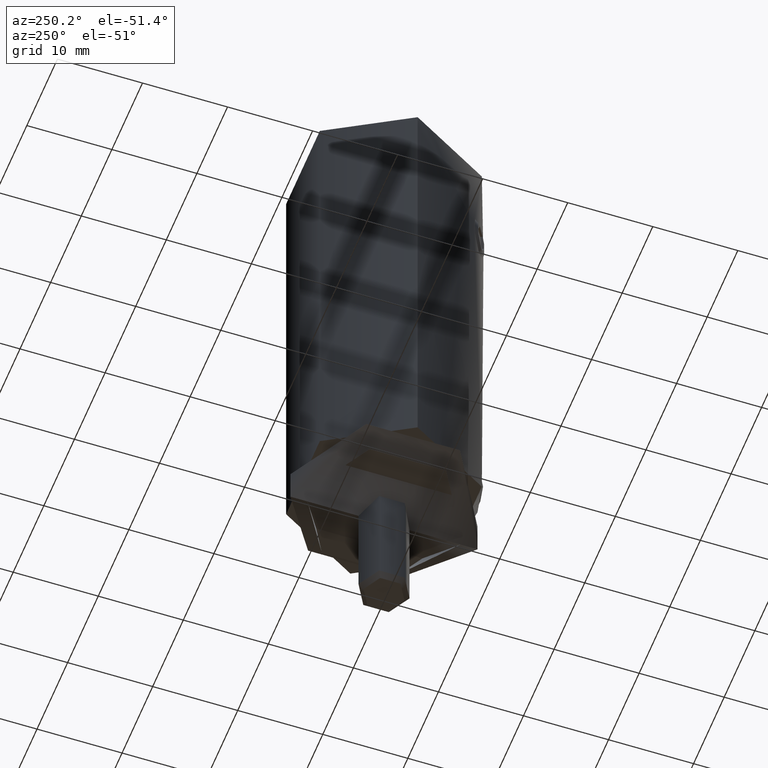
[diagram: clean part render]
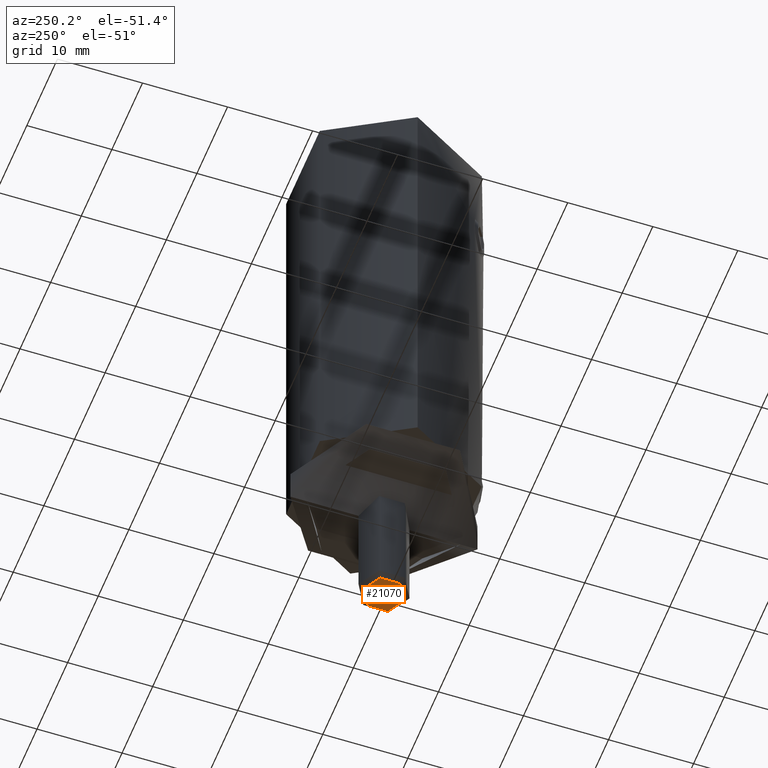
[diagram: same view with one face highlighted and labeled with its STEP entity id]
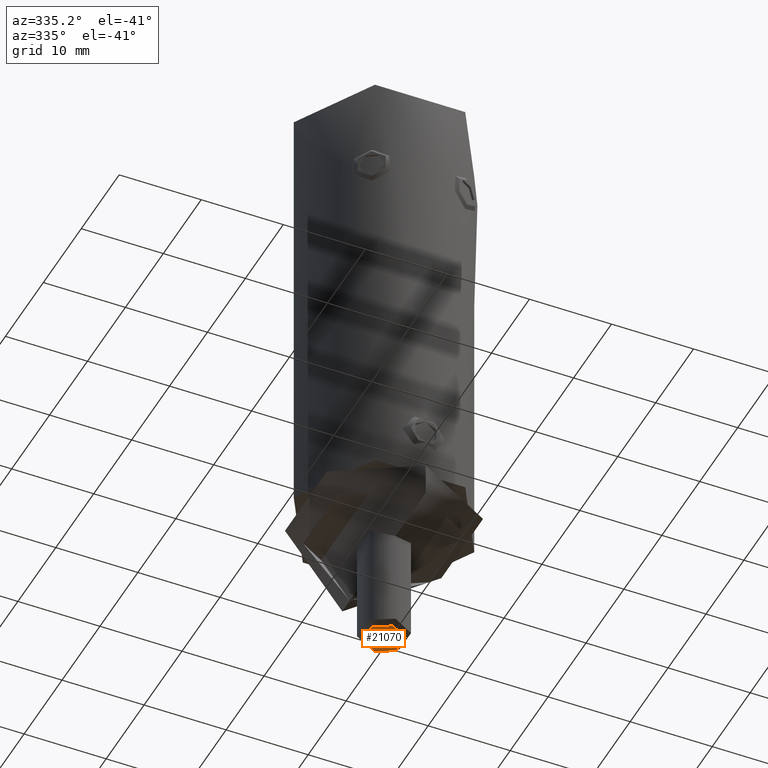
[diagram: same view with one face highlighted and labeled with its STEP entity id]
A machine part, auxiliary view. The second image highlights one B-rep face of the part: STEP entity #21070.
A second angle (auxiliary view) of the same face is appended — the face is thin or edge-on in the first view.
In plain terms, the highlighted planar face has unit normal (-0, 0, -1).
Its self-contained STEP definition (entity closure, byte-faithful):
#90 = EDGE_LOOP ( 'NONE', ( #13933, #10199 ) ) ;
#281 = FACE_OUTER_BOUND ( 'NONE', #90, .T. ) ;
#823 = DIRECTION ( 'NONE',  ( 2.243323199222252322E-30, -1.224646799147353207E-16, 1.000000000000000000 ) ) ;
#1929 = AXIS2_PLACEMENT_3D ( 'NONE', #7090, #6884, #20610 ) ;
#2190 = DIRECTION ( 'NONE',  ( 7.181444546697899486E-33, -1.000000000000000000, 0.000000000000000000 ) ) ;
#2365 = CARTESIAN_POINT ( 'NONE',  ( 3.306546357698069684E-16, -2.399999999999987921, 25.00000000000000355 ) ) ;
#2403 = PLANE ( 'NONE',  #11269 ) ;
#3357 = VERTEX_POINT ( 'NONE', #2365 ) ;
#5880 = DIRECTION ( 'NONE',  ( 7.181444546696669244E-33, -1.000000000000000000, -1.224646799147353207E-16 ) ) ;
#6109 = EDGE_CURVE ( 'NONE', #3357, #13267, #11347, .T. ) ;
#6884 = DIRECTION ( 'NONE',  ( 2.243323199222252322E-30, -1.224646799147352961E-16, 1.000000000000000000 ) ) ;
#6886 = EDGE_CURVE ( 'NONE', #13267, #3357, #20234, .T. ) ;
#7090 = CARTESIAN_POINT ( 'NONE',  ( 6.663717607579836052E-29, -3.061616997868383437E-15, 25.00000000000000355 ) ) ;
#9039 = DIRECTION ( 'NONE',  ( 2.243323199222252322E-30, -1.224646799147352961E-16, 1.000000000000000000 ) ) ;
#10199 = ORIENTED_EDGE ( 'NONE', *, *, #6109, .T. ) ;
#11269 = AXIS2_PLACEMENT_3D ( 'NONE', #17992, #823, #5880 ) ;
#11347 = CIRCLE ( 'NONE', #20386, 2.399999999999985256 ) ;
#13267 = VERTEX_POINT ( 'NONE', #19360 ) ;
#13933 = ORIENTED_EDGE ( 'NONE', *, *, #6886, .T. ) ;
#17992 = CARTESIAN_POINT ( 'NONE',  ( 6.663717607579836052E-29, -3.061616997868383437E-15, 25.00000000000000355 ) ) ;
#19352 = CARTESIAN_POINT ( 'NONE',  ( 6.663717607579836052E-29, -3.061616997868383437E-15, 25.00000000000000355 ) ) ;
#19360 = CARTESIAN_POINT ( 'NONE',  ( 2.283200000147180059E-29, 2.399999999999982148, 25.00000000000000355 ) ) ;
#20234 = CIRCLE ( 'NONE', #1929, 2.399999999999985256 ) ;
#20386 = AXIS2_PLACEMENT_3D ( 'NONE', #19352, #9039, #2190 ) ;
#20610 = DIRECTION ( 'NONE',  ( 7.181444546697899486E-33, -1.000000000000000000, 0.000000000000000000 ) ) ;
#21070 = ADVANCED_FACE ( 'NONE', ( #281 ), #2403, .T. ) ;